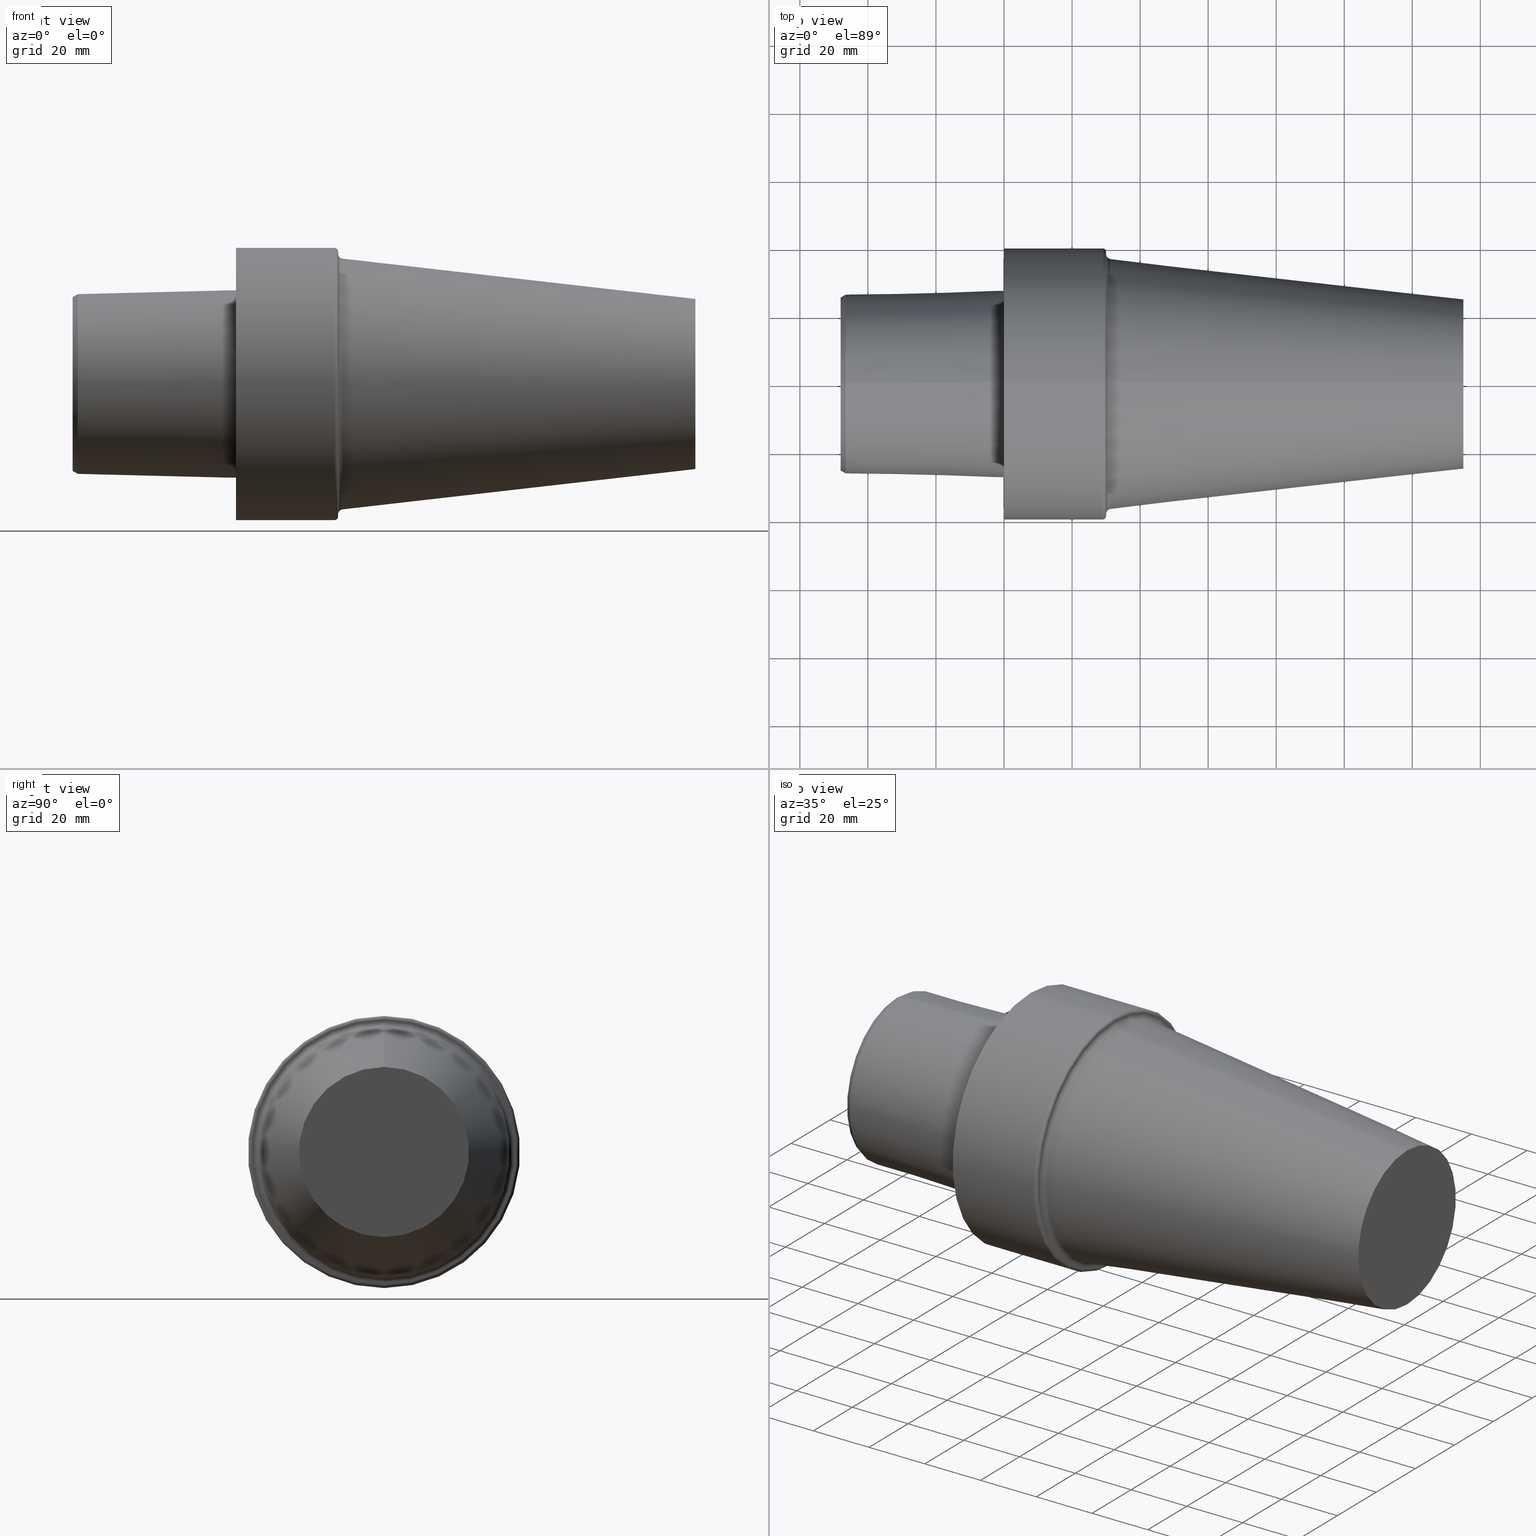
[diagram: canonical four-view strip — front | top / right | iso, engineering-drawing reading convention]
A machine part, canonical four-view strip (front | top / right | iso — engineering-drawing reading convention). The complete STEP part file that produces these views, byte-faithful:
ISO-10303-21;
HEADER;
FILE_DESCRIPTION (( 'STEP AP203' ),
    '1' );
FILE_NAME ('C8-S50-135.stp',
    '2022-03-11T15:37:04',
    ( '' ),
    ( '' ),
    'SwSTEP 2.0',
    'SolidWorks 2021',
    '' );
FILE_SCHEMA (( 'CONFIG_CONTROL_DESIGN' ));
ENDSEC;

DATA;
#1 = EDGE_LOOP ( 'NONE', ( #489, #426, #384, #85 ) ) ;
#2 = APPROVAL ( #527, 'UNSPECIFIED' ) ;
#3 = CARTESIAN_POINT ( 'NONE',  ( 29.99999996940000102, 0.000000000000000000, 38.33833553020095763 ) ) ;
#4 = ORIENTED_EDGE ( 'NONE', *, *, #473, .T. ) ;
#5 = LOCAL_TIME ( 9, 37, 4.000000000000000000, #172 ) ;
#6 = VECTOR ( 'NONE', #359, 1000.000000000000114 ) ;
#7 = ADVANCED_FACE ( 'NONE', ( #95 ), #18, .T. ) ;
#8 = ORIENTED_EDGE ( 'NONE', *, *, #144, .F. ) ;
#9 = CARTESIAN_POINT ( 'NONE',  ( -1.940694418020491918, 0.000000000000000000, 0.000000000000000000 ) ) ;
#10 = APPROVAL ( #420, 'UNSPECIFIED' ) ;
#11 = AXIS2_PLACEMENT_3D ( 'NONE', #84, #246, #418 ) ;
#12 = AXIS2_PLACEMENT_3D ( 'NONE', #472, #262, #434 ) ;
#13 = EDGE_CURVE ( 'NONE', #428, #467, #171, .T. ) ;
#14 = DIRECTION ( 'NONE',  ( 0.000000000000000000, 0.000000000000000000, -1.000000000000000000 ) ) ;
#15 = CARTESIAN_POINT ( 'NONE',  ( 0.000000000000000000, 0.000000000000000000, 27.52650806192296074 ) ) ;
#16 = CARTESIAN_POINT ( 'NONE',  ( -47.99999995373141815, 25.54657486860418558, 0.000000000000000000 ) ) ;
#17 = ORIENTED_EDGE ( 'NONE', *, *, #13, .T. ) ;
#18 = TOROIDAL_SURFACE ( 'NONE', #11, 38.99249996022764719, 0.9999999989799999156 ) ;
#19 = ORIENTED_EDGE ( 'NONE', *, *, #505, .F. ) ;
#20 = FACE_OUTER_BOUND ( 'NONE', #502, .T. ) ;
#21 = EDGE_CURVE ( 'NONE', #297, #247, #300, .T. ) ;
#22 = VERTEX_POINT ( 'NONE', #348 ) ;
#23 = AXIS2_PLACEMENT_3D ( 'NONE', #269, #485, #443 ) ;
#24 = CARTESIAN_POINT ( 'NONE',  ( 29.99999996940000102, 4.695091989169785401E-15, -38.33833553020095763 ) ) ;
#25 = DIRECTION ( 'NONE',  ( 0.000000000000000000, 0.000000000000000000, 1.000000000000000000 ) ) ;
#26 = DIRECTION ( 'NONE',  ( 0.000000000000000000, 1.000000000000000000, 1.224646799147351975E-16 ) ) ;
#27 = ORIENTED_EDGE ( 'NONE', *, *, #430, .F. ) ;
#28 = CARTESIAN_POINT ( 'NONE',  ( 29.99999996940000102, 0.000000000000000000, 0.000000000000000000 ) ) ;
#29 = ADVANCED_FACE ( 'NONE', ( #433 ), #184, .T. ) ;
#30 = AXIS2_PLACEMENT_3D ( 'NONE', #435, #148, #60 ) ;
#31 = FACE_OUTER_BOUND ( 'NONE', #299, .T. ) ;
#32 = CIRCLE ( 'NONE', #54, 24.99999997449999967 ) ;
#33 = APPROVAL_DATE_TIME ( #240, #100 ) ;
#34 = CC_DESIGN_DATE_AND_TIME_ASSIGNMENT ( #329, #375, ( #115 ) ) ;
#35 = DIRECTION ( 'NONE',  ( -1.000000000000000000, 0.000000000000000000, 0.000000000000000000 ) ) ;
#36 = EDGE_LOOP ( 'NONE', ( #8, #328, #313, #125 ) ) ;
#37 = APPROVAL_ROLE ( '' ) ;
#38 = FACE_OUTER_BOUND ( 'NONE', #117, .T. ) ;
#39 = DIRECTION ( 'NONE',  ( -1.000000000000000000, 0.000000000000000000, 0.000000000000000000 ) ) ;
#40 = CIRCLE ( 'NONE', #490, 38.33833553089489499 ) ;
#41 = EDGE_CURVE ( 'NONE', #423, #354, #523, .T. ) ;
#42 = CALENDAR_DATE ( 2022, 11, 3 ) ;
#43 = CARTESIAN_POINT ( 'NONE',  ( 29.99999996940000102, 4.836436366599519633E-15, -38.99249996022764719 ) ) ;
#44 = CARTESIAN_POINT ( 'NONE',  ( -46.49999995257000052, 0.000000000000000000, -26.41260027305914804 ) ) ;
#45 = ORIENTED_EDGE ( 'NONE', *, *, #365, .F. ) ;
#46 = CARTESIAN_POINT ( 'NONE',  ( -47.99999995373141815, 3.371024998973778328E-15, -27.52650806192296074 ) ) ;
#47 = ORIENTED_EDGE ( 'NONE', *, *, #279, .T. ) ;
#48 = CC_DESIGN_APPROVAL ( #100, ( #98 ) ) ;
#49 = ADVANCED_FACE ( 'NONE', ( #267 ), #220, .T. ) ;
#50 = DIRECTION ( 'NONE',  ( 0.000000000000000000, 0.000000000000000000, 1.000000000000000000 ) ) ;
#51 = ORIENTED_EDGE ( 'NONE', *, *, #290, .F. ) ;
#52 = CONICAL_SURFACE ( 'NONE', #427, 27.52650806192296074, 0.02499311489546479637 ) ;
#53 = ORIENTED_EDGE ( 'NONE', *, *, #430, .T. ) ;
#54 = AXIS2_PLACEMENT_3D ( 'NONE', #387, #241, #377 ) ;
#55 = DIRECTION ( 'NONE',  ( 0.8660254037844387076, 0.000000000000000000, -0.4999999999999998890 ) ) ;
#56 = ADVANCED_FACE ( 'NONE', ( #304 ), #385, .T. ) ;
#57 = CIRCLE ( 'NONE', #30, 25.54657486860418558 ) ;
#58 = AXIS2_PLACEMENT_3D ( 'NONE', #528, #320, #116 ) ;
#59 = ORGANIZATION ( 'UNSPECIFIED', 'UNSPECIFIED', '' ) ;
#60 = DIRECTION ( 'NONE',  ( 0.000000000000000000, 0.000000000000000000, 1.000000000000000000 ) ) ;
#61 = DIRECTION ( 'NONE',  ( -1.000000000000000000, 0.000000000000000000, 0.000000000000000000 ) ) ;
#62 = DIRECTION ( 'NONE',  ( 0.000000000000000000, 0.000000000000000000, 1.000000000000000000 ) ) ;
#63 = ORIENTED_EDGE ( 'NONE', *, *, #222, .F. ) ;
#64 = FACE_OUTER_BOUND ( 'NONE', #517, .T. ) ;
#65 = MANIFOLD_SOLID_BREP ( 'Scale1', #461 ) ;
#66 = ORIENTED_EDGE ( 'NONE', *, *, #130, .T. ) ;
#67 = CARTESIAN_POINT ( 'NONE',  ( 134.9999998623000010, 3.787099996474778961E-15, -24.99999997449999967 ) ) ;
#68 = EDGE_LOOP ( 'NONE', ( #415, #268 ) ) ;
#69 = LOCAL_TIME ( 9, 37, 4.000000000000000000, #370 ) ;
#70 = DIRECTION ( 'NONE',  ( 0.8660254037844387076, 6.123233995736768501E-17, 0.4999999999999998890 ) ) ;
#71 = LINE ( 'NONE', #516, #302 ) ;
#72 = CARTESIAN_POINT ( 'NONE',  ( 0.000000000000000000, 0.000000000000000000, 39.99249995920764889 ) ) ;
#73 = CC_DESIGN_PERSON_AND_ORGANIZATION_ASSIGNMENT ( #321, #206, ( #158 ) ) ;
#74 = PERSON_AND_ORGANIZATION ( #429, #59 ) ;
#75 = LINE ( 'NONE', #284, #213 ) ;
#76 = CIRCLE ( 'NONE', #386, 0.9999999989799973621 ) ;
#77 = CARTESIAN_POINT ( 'NONE',  ( 31.32968007804372235, 0.000000000000000000, 0.000000000000000000 ) ) ;
#78 = DATE_AND_TIME ( #133, #5 ) ;
#79 = DIRECTION ( 'NONE',  ( -1.000000000000000000, 0.000000000000000000, 0.000000000000000000 ) ) ;
#80 = EDGE_CURVE ( 'NONE', #467, #22, #306, .T. ) ;
#81 = EDGE_LOOP ( 'NONE', ( #4, #450, #534, #535 ) ) ;
#82 = DATE_AND_TIME ( #120, #69 ) ;
#83 = DIRECTION ( 'NONE',  ( 0.000000000000000000, 1.000000000000000000, 0.000000000000000000 ) ) ;
#84 = CARTESIAN_POINT ( 'NONE',  ( 28.99999997041999933, 0.000000000000000000, 0.000000000000000000 ) ) ;
#85 = ORIENTED_EDGE ( 'NONE', *, *, #13, .F. ) ;
#86 = SHAPE_DEFINITION_REPRESENTATION ( #217, #91 ) ;
#87 = CARTESIAN_POINT ( 'NONE',  ( 31.49999996787000001, 0.000000000000000000, 0.000000000000000000 ) ) ;
#88 = TOROIDAL_SURFACE ( 'NONE', #379, 38.99249996022764719, 0.9999999989799999156 ) ;
#89 = ORIENTED_EDGE ( 'NONE', *, *, #298, .T. ) ;
#90 = EDGE_CURVE ( 'NONE', #264, #423, #40, .T. ) ;
#91 = ADVANCED_BREP_SHAPE_REPRESENTATION ( 'C8-S50-135', ( #65, #23 ), #193 ) ;
#92 = CARTESIAN_POINT ( 'NONE',  ( 31.32968007804372235, 0.000000000000000000, 0.000000000000000000 ) ) ;
#93 = ORIENTED_EDGE ( 'NONE', *, *, #445, .T. ) ;
#94 = DIRECTION ( 'NONE',  ( 0.000000000000000000, 0.000000000000000000, 1.000000000000000000 ) ) ;
#95 = FACE_OUTER_BOUND ( 'NONE', #255, .T. ) ;
#96 = AXIS2_PLACEMENT_3D ( 'NONE', #349, #511, #143 ) ;
#97 = AXIS2_PLACEMENT_3D ( 'NONE', #245, #380, #501 ) ;
#98 = PRODUCT_DEFINITION_FORMATION_WITH_SPECIFIED_SOURCE ( 'ANY', '', #391, .NOT_KNOWN. ) ;
#99 = EDGE_CURVE ( 'NONE', #257, #428, #57, .T. ) ;
#100 = APPROVAL ( #244, 'UNSPECIFIED' ) ;
#101 = ORIENTED_EDGE ( 'NONE', *, *, #353, .F. ) ;
#102 = CIRCLE ( 'NONE', #512, 26.41260027305914804 ) ;
#103 = AXIS2_PLACEMENT_3D ( 'NONE', #293, #462, #165 ) ;
#104 = DIRECTION ( 'NONE',  ( 0.000000000000000000, 0.000000000000000000, 1.000000000000000000 ) ) ;
#105 = ADVANCED_FACE ( 'NONE', ( #399 ), #106, .F. ) ;
#106 = PLANE ( 'NONE',  #346 ) ;
#107 = ORIENTED_EDGE ( 'NONE', *, *, #271, .T. ) ;
#108 = DIRECTION ( 'NONE',  ( 0.000000000000000000, 0.000000000000000000, 1.000000000000000000 ) ) ;
#109 = CARTESIAN_POINT ( 'NONE',  ( -1.940694418020491918, 0.000000000000000000, 27.52650806192296074 ) ) ;
#110 = VECTOR ( 'NONE', #70, 1000.000000000000000 ) ;
#111 = CARTESIAN_POINT ( 'NONE',  ( -47.99999995373141815, 0.000000000000000000, 0.000000000000000000 ) ) ;
#112 = AXIS2_PLACEMENT_3D ( 'NONE', #234, #309, #25 ) ;
#113 = EDGE_CURVE ( 'NONE', #373, #526, #175, .T. ) ;
#114 = APPROVAL_ROLE ( '' ) ;
#115 = SECURITY_CLASSIFICATION ( '', '', #367 ) ;
#116 = DIRECTION ( 'NONE',  ( 0.000000000000000000, 0.000000000000000000, 1.000000000000000000 ) ) ;
#117 = EDGE_LOOP ( 'NONE', ( #45, #287 ) ) ;
#118 = CARTESIAN_POINT ( 'NONE',  ( 31.49999996787000001, 0.000000000000000000, 0.000000000000000000 ) ) ;
#119 = AXIS2_PLACEMENT_3D ( 'NONE', #191, #322, #62 ) ;
#120 = CALENDAR_DATE ( 2022, 11, 3 ) ;
#121 = EDGE_CURVE ( 'NONE', #504, #22, #431, .T. ) ;
#122 = AXIS2_PLACEMENT_3D ( 'NONE', #229, #360, #150 ) ;
#123 = CARTESIAN_POINT ( 'NONE',  ( 31.32968007804372235, 0.000000000000000000, 36.84803652241500060 ) ) ;
#124 = ORIENTED_EDGE ( 'NONE', *, *, #445, .F. ) ;
#125 = ORIENTED_EDGE ( 'NONE', *, *, #80, .F. ) ;
#126 = PERSON_AND_ORGANIZATION ( #429, #59 ) ;
#127 = DIRECTION ( 'NONE',  ( 0.000000000000000000, 0.000000000000000000, 1.000000000000000000 ) ) ;
#128 = ORIENTED_EDGE ( 'NONE', *, *, #464, .T. ) ;
#129 = DIRECTION ( 'NONE',  ( -1.000000000000000000, 0.000000000000000000, 0.000000000000000000 ) ) ;
#130 = EDGE_CURVE ( 'NONE', #264, #404, #499, .T. ) ;
#131 = ORIENTED_EDGE ( 'NONE', *, *, #538, .T. ) ;
#132 = CIRCLE ( 'NONE', #283, 36.84803652241500060 ) ;
#133 = CALENDAR_DATE ( 2022, 11, 3 ) ;
#134 = PLANE ( 'NONE',  #308 ) ;
#135 = CC_DESIGN_PERSON_AND_ORGANIZATION_ASSIGNMENT ( #160, #236, ( #115 ) ) ;
#136 = DIRECTION ( 'NONE',  ( 0.000000000000000000, 0.000000000000000000, 1.000000000000000000 ) ) ;
#137 = ORIENTED_EDGE ( 'NONE', *, *, #271, .F. ) ;
#138 = APPROVAL_PERSON_ORGANIZATION ( #74, #10, #37 ) ;
#139 = VECTOR ( 'NONE', #390, 1000.000000000000114 ) ;
#140 = EDGE_CURVE ( 'NONE', #257, #537, #368, .T. ) ;
#141 = FACE_OUTER_BOUND ( 'NONE', #479, .T. ) ;
#142 = CIRCLE ( 'NONE', #216, 38.33833553089489499 ) ;
#143 = DIRECTION ( 'NONE',  ( 0.000000000000000000, 0.000000000000000000, 1.000000000000000000 ) ) ;
#144 = EDGE_CURVE ( 'NONE', #537, #467, #102, .T. ) ;
#145 = AXIS2_PLACEMENT_3D ( 'NONE', #314, #278, #488 ) ;
#146 = DIRECTION ( 'NONE',  ( 0.000000000000000000, 0.000000000000000000, 1.000000000000000000 ) ) ;
#147 = CIRCLE ( 'NONE', #491, 39.99249995920764889 ) ;
#148 = DIRECTION ( 'NONE',  ( -1.000000000000000000, 0.000000000000000000, 0.000000000000000000 ) ) ;
#149 = EDGE_LOOP ( 'NONE', ( #93, #252 ) ) ;
#150 = DIRECTION ( 'NONE',  ( 0.000000000000000000, 0.000000000000000000, 1.000000000000000000 ) ) ;
#151 = ORIENTED_EDGE ( 'NONE', *, *, #290, .T. ) ;
#152 = DIRECTION ( 'NONE',  ( 0.000000000000000000, 0.000000000000000000, -1.000000000000000000 ) ) ;
#153 = DIRECTION ( 'NONE',  ( 0.000000000000000000, 0.000000000000000000, 1.000000000000000000 ) ) ;
#154 = DESIGN_CONTEXT ( 'detailed design', #162, 'design' ) ;
#155 = ORIENTED_EDGE ( 'NONE', *, *, #498, .F. ) ;
#156 = ADVANCED_FACE ( 'NONE', ( #444 ), #480, .T. ) ;
#157 = CARTESIAN_POINT ( 'NONE',  ( -1.940694418020491918, 0.000000000000000000, 0.000000000000000000 ) ) ;
#158 = PRODUCT_DEFINITION ( 'UNKNOWN', '', #98, #154 ) ;
#159 = DIRECTION ( 'NONE',  ( 0.000000000000000000, 0.000000000000000000, 1.000000000000000000 ) ) ;
#160 = PERSON_AND_ORGANIZATION ( #429, #59 ) ;
#161 = DIRECTION ( 'NONE',  ( 1.000000000000000000, 0.000000000000000000, 0.000000000000000000 ) ) ;
#162 = APPLICATION_CONTEXT ( 'configuration controlled 3d designs of mechanical parts and assemblies' ) ;
#163 = ORIENTED_EDGE ( 'NONE', *, *, #509, .F. ) ;
#164 = PERSON_AND_ORGANIZATION ( #429, #59 ) ;
#165 = DIRECTION ( 'NONE',  ( 0.000000000000000000, 0.000000000000000000, -1.000000000000000000 ) ) ;
#166 = CONICAL_SURFACE ( 'NONE', #103, 27.52650806192296074, 0.02499311489546479637 ) ;
#167 = ORIENTED_EDGE ( 'NONE', *, *, #303, .T. ) ;
#168 = VERTEX_POINT ( 'NONE', #67 ) ;
#169 = CONICAL_SURFACE ( 'NONE', #122, 24.99999997449999967, 0.1137920071545894807 ) ;
#170 = CARTESIAN_POINT ( 'NONE',  ( -47.99999995373141815, 0.000000000000000000, -25.54657486860418558 ) ) ;
#171 = LINE ( 'NONE', #44, #292 ) ;
#172 = COORDINATED_UNIVERSAL_TIME_OFFSET ( 6, 0, .BEHIND. ) ;
#173 = FACE_OUTER_BOUND ( 'NONE', #36, .T. ) ;
#174 = ORIENTED_EDGE ( 'NONE', *, *, #41, .F. ) ;
#175 = CIRCLE ( 'NONE', #362, 38.99249996022764719 ) ;
#176 = ORIENTED_EDGE ( 'NONE', *, *, #21, .F. ) ;
#177 = AXIS2_PLACEMENT_3D ( 'NONE', #316, #200, #483 ) ;
#178 = PLANE ( 'NONE',  #513 ) ;
#179 = ORIENTED_EDGE ( 'NONE', *, *, #331, .T. ) ;
#180 = LINE ( 'NONE', #344, #311 ) ;
#181 = CARTESIAN_POINT ( 'NONE',  ( -1.940694418020491918, 0.000000000000000000, -27.52650806192296074 ) ) ;
#182 = EDGE_CURVE ( 'NONE', #526, #440, #376, .T. ) ;
#183 = DIRECTION ( 'NONE',  ( -1.000000000000000000, 0.000000000000000000, 0.000000000000000000 ) ) ;
#184 = CONICAL_SURFACE ( 'NONE', #525, 26.41260027305914804, 0.5235987755982987046 ) ;
#185 = ADVANCED_FACE ( 'NONE', ( #31 ), #474, .F. ) ;
#186 = DIRECTION ( 'NONE',  ( 0.000000000000000000, 0.000000000000000000, 1.000000000000000000 ) ) ;
#187 = CARTESIAN_POINT ( 'NONE',  ( 28.99999997041999933, 0.000000000000000000, 0.000000000000000000 ) ) ;
#188 = DIRECTION ( 'NONE',  ( 1.000000000000000000, 0.000000000000000000, 0.000000000000000000 ) ) ;
#189 = CIRCLE ( 'NONE', #409, 26.41260027305914804 ) ;
#190 = ORIENTED_EDGE ( 'NONE', *, *, #412, .F. ) ;
#191 = CARTESIAN_POINT ( 'NONE',  ( 29.99999996940000102, 0.000000000000000000, 0.000000000000000000 ) ) ;
#192 = ORIENTED_EDGE ( 'NONE', *, *, #21, .T. ) ;
#193 =( GEOMETRIC_REPRESENTATION_CONTEXT ( 3 ) GLOBAL_UNCERTAINTY_ASSIGNED_CONTEXT ( ( #397 ) ) GLOBAL_UNIT_ASSIGNED_CONTEXT ( ( #405, #315, #448 ) ) REPRESENTATION_CONTEXT ( 'NONE', 'WORKASPACE' ) );
#194 = CARTESIAN_POINT ( 'NONE',  ( -46.49999995257000052, 3.302817818564909263E-15, 26.41260027305914804 ) ) ;
#195 = CARTESIAN_POINT ( 'NONE',  ( 134.9999998623000010, 0.000000000000000000, 24.99999997449999967 ) ) ;
#196 = EDGE_CURVE ( 'NONE', #440, #247, #75, .T. ) ;
#197 = CARTESIAN_POINT ( 'NONE',  ( -46.49999995257000052, 3.234610638156039409E-15, 26.41260027305914804 ) ) ;
#198 = APPLICATION_PROTOCOL_DEFINITION ( 'international standard', 'config_control_design', 1994, #162 ) ;
#199 = CIRCLE ( 'NONE', #238, 24.99999997449999967 ) ;
#200 = DIRECTION ( 'NONE',  ( -1.000000000000000000, 0.000000000000000000, 0.000000000000000000 ) ) ;
#201 = FACE_OUTER_BOUND ( 'NONE', #1, .T. ) ;
#202 = ORIENTED_EDGE ( 'NONE', *, *, #303, .F. ) ;
#203 = PLANE ( 'NONE',  #277 ) ;
#204 = DIRECTION ( 'NONE',  ( -1.000000000000000000, 0.000000000000000000, 0.000000000000000000 ) ) ;
#205 = ORIENTED_EDGE ( 'NONE', *, *, #365, .T. ) ;
#206 = PERSON_AND_ORGANIZATION_ROLE ( 'creator' ) ;
#207 = CARTESIAN_POINT ( 'NONE',  ( 29.99999996940000102, 38.33833553089489499, 0.000000000000000000 ) ) ;
#208 = ORIENTED_EDGE ( 'NONE', *, *, #421, .T. ) ;
#209 = ADVANCED_FACE ( 'NONE', ( #201 ), #352, .T. ) ;
#210 = CARTESIAN_POINT ( 'NONE',  ( 28.99999997041999933, 4.897668706494425201E-15, -39.99249995920764889 ) ) ;
#211 = ORIENTED_EDGE ( 'NONE', *, *, #473, .F. ) ;
#212 = CARTESIAN_POINT ( 'NONE',  ( 0.000000000000000000, 39.99249995920764889, 0.000000000000000000 ) ) ;
#213 = VECTOR ( 'NONE', #447, 1000.000000000000000 ) ;
#214 = VERTEX_POINT ( 'NONE', #521 ) ;
#215 = VECTOR ( 'NONE', #296, 1000.000000000000000 ) ;
#216 = AXIS2_PLACEMENT_3D ( 'NONE', #28, #481, #446 ) ;
#217 = PRODUCT_DEFINITION_SHAPE ( 'NONE', 'NONE',  #158 ) ;
#218 = ADVANCED_FACE ( 'NONE', ( #20 ), #52, .T. ) ;
#219 = DIRECTION ( 'NONE',  ( 0.000000000000000000, -1.000000000000000000, 0.000000000000000000 ) ) ;
#220 = CYLINDRICAL_SURFACE ( 'NONE', #442, 27.52650806192296074 ) ;
#221 = DIRECTION ( 'NONE',  ( 0.000000000000000000, 0.000000000000000000, -1.000000000000000000 ) ) ;
#222 = EDGE_CURVE ( 'NONE', #526, #373, #468, .T. ) ;
#223 = DIRECTION ( 'NONE',  ( 1.000000000000000000, 0.000000000000000000, 0.000000000000000000 ) ) ;
#224 = CARTESIAN_POINT ( 'NONE',  ( 29.99999996940000102, 0.000000000000000000, 38.99249996022764719 ) ) ;
#225 = CC_DESIGN_PERSON_AND_ORGANIZATION_ASSIGNMENT ( #126, #458, ( #98 ) ) ;
#226 = DIRECTION ( 'NONE',  ( 0.000000000000000000, 0.000000000000000000, 1.000000000000000000 ) ) ;
#227 = FACE_OUTER_BOUND ( 'NONE', #81, .T. ) ;
#228 = EDGE_LOOP ( 'NONE', ( #190, #89, #208, #531 ) ) ;
#229 = CARTESIAN_POINT ( 'NONE',  ( 134.9999998623000010, 0.000000000000000000, 0.000000000000000000 ) ) ;
#230 = VECTOR ( 'NONE', #79, 1000.000000000000000 ) ;
#231 = ORIENTED_EDGE ( 'NONE', *, *, #140, .F. ) ;
#232 = PERSON_AND_ORGANIZATION ( #429, #59 ) ;
#233 = DIRECTION ( 'NONE',  ( -1.000000000000000000, 0.000000000000000000, 0.000000000000000000 ) ) ;
#234 = CARTESIAN_POINT ( 'NONE',  ( 28.99999997041999933, 0.000000000000000000, 0.000000000000000000 ) ) ;
#235 = CARTESIAN_POINT ( 'NONE',  ( 0.000000000000000000, 0.000000000000000000, 0.000000000000000000 ) ) ;
#236 = PERSON_AND_ORGANIZATION_ROLE ( 'classification_officer' ) ;
#237 = AXIS2_PLACEMENT_3D ( 'NONE', #111, #35, #441 ) ;
#238 = AXIS2_PLACEMENT_3D ( 'NONE', #539, #417, #136 ) ;
#239 = CARTESIAN_POINT ( 'NONE',  ( -46.49999995257000052, 0.000000000000000000, 0.000000000000000000 ) ) ;
#240 = DATE_AND_TIME ( #42, #280 ) ;
#241 = DIRECTION ( 'NONE',  ( -1.000000000000000000, 0.000000000000000000, 0.000000000000000000 ) ) ;
#242 = CARTESIAN_POINT ( 'NONE',  ( 28.99999997041999933, 0.000000000000000000, 39.99249995920764889 ) ) ;
#243 = ORIENTED_EDGE ( 'NONE', *, *, #182, .F. ) ;
#244 = APPROVAL_STATUS ( 'not_yet_approved' ) ;
#245 = CARTESIAN_POINT ( 'NONE',  ( -47.99999995373141815, 0.000000000000000000, 0.000000000000000000 ) ) ;
#246 = DIRECTION ( 'NONE',  ( -1.000000000000000000, 0.000000000000000000, 0.000000000000000000 ) ) ;
#247 = VERTEX_POINT ( 'NONE', #72 ) ;
#248 = ADVANCED_FACE ( 'NONE', ( #227 ), #402, .T. ) ;
#249 = APPROVAL_DATE_TIME ( #82, #2 ) ;
#250 = CIRCLE ( 'NONE', #12, 27.52650806192296074 ) ;
#251 = CARTESIAN_POINT ( 'NONE',  ( 28.99999997041999933, 4.775204026704606177E-15, -38.99249996022764719 ) ) ;
#252 = ORIENTED_EDGE ( 'NONE', *, *, #99, .T. ) ;
#253 = APPLICATION_CONTEXT ( 'configuration controlled 3d designs of mechanical parts and assemblies' ) ;
#254 = DIRECTION ( 'NONE',  ( 0.000000000000000000, 0.000000000000000000, 1.000000000000000000 ) ) ;
#255 = EDGE_LOOP ( 'NONE', ( #438, #460, #19, #243 ) ) ;
#256 = AXIS2_PLACEMENT_3D ( 'NONE', #9, #301, #347 ) ;
#257 = VERTEX_POINT ( 'NONE', #406 ) ;
#258 = CIRCLE ( 'NONE', #58, 39.99249995920764889 ) ;
#259 = APPROVAL_PERSON_ORGANIZATION ( #364, #2, #114 ) ;
#260 = CARTESIAN_POINT ( 'NONE',  ( 31.49999996787000001, 0.000000000000000000, 38.33833552950702028 ) ) ;
#261 = DIRECTION ( 'NONE',  ( -1.000000000000000000, 0.000000000000000000, 0.000000000000000000 ) ) ;
#262 = DIRECTION ( 'NONE',  ( -1.000000000000000000, 0.000000000000000000, 0.000000000000000000 ) ) ;
#263 = AXIS2_PLACEMENT_3D ( 'NONE', #289, #39, #414 ) ;
#264 = VERTEX_POINT ( 'NONE', #24 ) ;
#265 = DIRECTION ( 'NONE',  ( -1.000000000000000000, 0.000000000000000000, 0.000000000000000000 ) ) ;
#266 = DIRECTION ( 'NONE',  ( -0.9935326726551686471, 1.390544694323235530E-17, -0.1135465911715431570 ) ) ;
#267 = FACE_OUTER_BOUND ( 'NONE', #228, .T. ) ;
#268 = ORIENTED_EDGE ( 'NONE', *, *, #90, .T. ) ;
#269 = CARTESIAN_POINT ( 'NONE',  ( 0.000000000000000000, 0.000000000000000000, 0.000000000000000000 ) ) ;
#270 = ORIENTED_EDGE ( 'NONE', *, *, #113, .F. ) ;
#271 = EDGE_CURVE ( 'NONE', #467, #537, #189, .T. ) ;
#272 = DIRECTION ( 'NONE',  ( 0.000000000000000000, -1.224646799147350249E-16, 1.000000000000000000 ) ) ;
#273 = CC_DESIGN_APPROVAL ( #10, ( #115 ) ) ;
#274 = AXIS2_PLACEMENT_3D ( 'NONE', #437, #261, #186 ) ;
#275 = PRODUCT_RELATED_PRODUCT_CATEGORY ( 'detail', '', ( #391 ) ) ;
#276 = CARTESIAN_POINT ( 'NONE',  ( -46.49999995257000052, 0.000000000000000000, 0.000000000000000000 ) ) ;
#277 = AXIS2_PLACEMENT_3D ( 'NONE', #372, #265, #393 ) ;
#278 = DIRECTION ( 'NONE',  ( 0.000000000000000000, -1.000000000000000000, 0.000000000000000000 ) ) ;
#279 = EDGE_CURVE ( 'NONE', #247, #297, #147, .T. ) ;
#280 = LOCAL_TIME ( 9, 37, 4.000000000000000000, #324 ) ;
#281 = FACE_BOUND ( 'NONE', #68, .T. ) ;
#282 = ORIENTED_EDGE ( 'NONE', *, *, #196, .F. ) ;
#283 = AXIS2_PLACEMENT_3D ( 'NONE', #77, #204, #50 ) ;
#284 = CARTESIAN_POINT ( 'NONE',  ( -47.99999995373141815, 0.000000000000000000, 39.99249995920764889 ) ) ;
#285 = FACE_OUTER_BOUND ( 'NONE', #369, .T. ) ;
#286 = ORIENTED_EDGE ( 'NONE', *, *, #279, .F. ) ;
#287 = ORIENTED_EDGE ( 'NONE', *, *, #464, .F. ) ;
#288 = DATE_TIME_ROLE ( 'creation_date' ) ;
#289 = CARTESIAN_POINT ( 'NONE',  ( -47.99999995373141815, 0.000000000000000000, 0.000000000000000000 ) ) ;
#290 = EDGE_CURVE ( 'NONE', #214, #354, #361, .T. ) ;
#291 = ORIENTED_EDGE ( 'NONE', *, *, #41, .T. ) ;
#292 = VECTOR ( 'NONE', #55, 1000.000000000000000 ) ;
#293 = CARTESIAN_POINT ( 'NONE',  ( -1.940694418020491918, 0.000000000000000000, 0.000000000000000000 ) ) ;
#294 = VERTEX_POINT ( 'NONE', #408 ) ;
#295 = APPROVAL_ROLE ( '' ) ;
#296 = DIRECTION ( 'NONE',  ( -1.000000000000000000, 0.000000000000000000, 0.000000000000000000 ) ) ;
#297 = VERTEX_POINT ( 'NONE', #484 ) ;
#298 = EDGE_CURVE ( 'NONE', #294, #496, #452, .T. ) ;
#299 = EDGE_LOOP ( 'NONE', ( #478, #163, #291, #179 ) ) ;
#300 = CIRCLE ( 'NONE', #274, 39.99249995920764889 ) ;
#301 = DIRECTION ( 'NONE',  ( -1.000000000000000000, 0.000000000000000000, 0.000000000000000000 ) ) ;
#302 = VECTOR ( 'NONE', #520, 1000.000000000000114 ) ;
#303 = EDGE_CURVE ( 'NONE', #419, #440, #258, .T. ) ;
#304 = FACE_OUTER_BOUND ( 'NONE', #335, .T. ) ;
#305 = ORIENTED_EDGE ( 'NONE', *, *, #113, .T. ) ;
#306 = LINE ( 'NONE', #181, #139 ) ;
#307 = CC_DESIGN_PERSON_AND_ORGANIZATION_ASSIGNMENT ( #232, #319, ( #391 ) ) ;
#308 = AXIS2_PLACEMENT_3D ( 'NONE', #212, #533, #83 ) ;
#309 = DIRECTION ( 'NONE',  ( -1.000000000000000000, 0.000000000000000000, 0.000000000000000000 ) ) ;
#310 = CARTESIAN_POINT ( 'NONE',  ( 29.99999996940000102, 0.000000000000000000, 0.000000000000000000 ) ) ;
#311 = VECTOR ( 'NONE', #266, 1000.000000000000114 ) ;
#312 = ADVANCED_FACE ( 'NONE', ( #281, #339 ), #178, .F. ) ;
#313 = ORIENTED_EDGE ( 'NONE', *, *, #121, .T. ) ;
#314 = CARTESIAN_POINT ( 'NONE',  ( 28.99999997041999933, 0.000000000000000000, 38.99249996022764719 ) ) ;
#315 =( NAMED_UNIT ( * ) PLANE_ANGLE_UNIT ( ) SI_UNIT ( $, .RADIAN. ) );
#316 = CARTESIAN_POINT ( 'NONE',  ( 0.000000000000000000, 0.000000000000000000, 0.000000000000000000 ) ) ;
#317 = AXIS2_PLACEMENT_3D ( 'NONE', #260, #219, #221 ) ;
#318 = DIRECTION ( 'NONE',  ( -1.000000000000000000, 0.000000000000000000, 0.000000000000000000 ) ) ;
#319 = PERSON_AND_ORGANIZATION_ROLE ( 'design_owner' ) ;
#320 = DIRECTION ( 'NONE',  ( -1.000000000000000000, 0.000000000000000000, 0.000000000000000000 ) ) ;
#321 = PERSON_AND_ORGANIZATION ( #429, #59 ) ;
#322 = DIRECTION ( 'NONE',  ( -1.000000000000000000, 0.000000000000000000, 0.000000000000000000 ) ) ;
#323 = ORIENTED_EDGE ( 'NONE', *, *, #90, .F. ) ;
#324 = COORDINATED_UNIVERSAL_TIME_OFFSET ( 6, 0, .BEHIND. ) ;
#325 = VECTOR ( 'NONE', #334, 1000.000000000000000 ) ;
#326 = DIRECTION ( 'NONE',  ( 0.000000000000000000, -1.224646799147358384E-16, 1.000000000000000000 ) ) ;
#327 = ORIENTED_EDGE ( 'NONE', *, *, #331, .F. ) ;
#328 = ORIENTED_EDGE ( 'NONE', *, *, #519, .T. ) ;
#329 = DATE_AND_TIME ( #413, #424 ) ;
#330 = CC_DESIGN_APPROVAL ( #2, ( #158 ) ) ;
#331 = EDGE_CURVE ( 'NONE', #354, #404, #475, .T. ) ;
#332 = DIRECTION ( 'NONE',  ( 0.000000000000000000, 0.000000000000000000, 1.000000000000000000 ) ) ;
#333 = ORIENTED_EDGE ( 'NONE', *, *, #519, .F. ) ;
#334 = DIRECTION ( 'NONE',  ( -1.000000000000000000, 0.000000000000000000, 0.000000000000000000 ) ) ;
#335 = EDGE_LOOP ( 'NONE', ( #205, #358, #327, #51 ) ) ;
#336 = COORDINATED_UNIVERSAL_TIME_OFFSET ( 6, 0, .BEHIND. ) ;
#337 = AXIS2_PLACEMENT_3D ( 'NONE', #507, #26, #272 ) ;
#338 = AXIS2_PLACEMENT_3D ( 'NONE', #87, #456, #254 ) ;
#339 = FACE_OUTER_BOUND ( 'NONE', #463, .T. ) ;
#340 = ADVANCED_FACE ( 'NONE', ( #342 ), #503, .T. ) ;
#341 = EDGE_LOOP ( 'NONE', ( #515, #493, #286, #282 ) ) ;
#342 = FACE_OUTER_BOUND ( 'NONE', #388, .T. ) ;
#343 = ORIENTED_EDGE ( 'NONE', *, *, #80, .T. ) ;
#344 = CARTESIAN_POINT ( 'NONE',  ( 134.9999998623000010, 3.061616994745535943E-15, -24.99999997449999967 ) ) ;
#345 = CARTESIAN_POINT ( 'NONE',  ( -46.49999995257000052, 0.000000000000000000, 0.000000000000000000 ) ) ;
#346 = AXIS2_PLACEMENT_3D ( 'NONE', #16, #188, #351 ) ;
#347 = DIRECTION ( 'NONE',  ( 0.000000000000000000, 0.000000000000000000, 1.000000000000000000 ) ) ;
#348 = CARTESIAN_POINT ( 'NONE',  ( -1.940694418020491918, 3.371024998973778328E-15, -27.52650806192296074 ) ) ;
#349 = CARTESIAN_POINT ( 'NONE',  ( 134.9999998623000010, 0.000000000000000000, 0.000000000000000000 ) ) ;
#350 = DIRECTION ( 'NONE',  ( -1.000000000000000000, 0.000000000000000000, 0.000000000000000000 ) ) ;
#351 = DIRECTION ( 'NONE',  ( 0.000000000000000000, 1.000000000000000000, 0.000000000000000000 ) ) ;
#352 = CONICAL_SURFACE ( 'NONE', #403, 26.41260027305914804, 0.5235987755982987046 ) ;
#353 = EDGE_CURVE ( 'NONE', #419, #297, #497, .T. ) ;
#354 = VERTEX_POINT ( 'NONE', #123 ) ;
#355 = EDGE_LOOP ( 'NONE', ( #323, #66, #53, #174 ) ) ;
#356 = CARTESIAN_POINT ( 'NONE',  ( -47.99999995373141815, 0.000000000000000000, 0.000000000000000000 ) ) ;
#357 = AXIS2_PLACEMENT_3D ( 'NONE', #436, #61, #146 ) ;
#358 = ORIENTED_EDGE ( 'NONE', *, *, #498, .T. ) ;
#359 = DIRECTION ( 'NONE',  ( -0.9935326726551686471, 0.000000000000000000, 0.1135465911715431570 ) ) ;
#360 = DIRECTION ( 'NONE',  ( -1.000000000000000000, 0.000000000000000000, 0.000000000000000000 ) ) ;
#361 = LINE ( 'NONE', #195, #6 ) ;
#362 = AXIS2_PLACEMENT_3D ( 'NONE', #310, #477, #389 ) ;
#363 = TOROIDAL_SURFACE ( 'NONE', #338, 38.33833552950702028, 1.499999998469999873 ) ;
#364 = PERSON_AND_ORGANIZATION ( #429, #59 ) ;
#365 = EDGE_CURVE ( 'NONE', #214, #168, #199, .T. ) ;
#366 = DIRECTION ( 'NONE',  ( 0.000000000000000000, 0.000000000000000000, -1.000000000000000000 ) ) ;
#367 = SECURITY_CLASSIFICATION_LEVEL ( 'unclassified' ) ;
#368 = LINE ( 'NONE', #197, #110 ) ;
#369 = EDGE_LOOP ( 'NONE', ( #47, #192 ) ) ;
#370 = COORDINATED_UNIVERSAL_TIME_OFFSET ( 6, 0, .BEHIND. ) ;
#371 = APPROVAL_PERSON_ORGANIZATION ( #164, #100, #295 ) ;
#372 = CARTESIAN_POINT ( 'NONE',  ( 134.9999998623000010, 0.000000000000000000, 0.000000000000000000 ) ) ;
#373 = VERTEX_POINT ( 'NONE', #43 ) ;
#374 = ADVANCED_FACE ( 'NONE', ( #173 ), #166, .T. ) ;
#375 = DATE_TIME_ROLE ( 'classification_date' ) ;
#376 = CIRCLE ( 'NONE', #145, 0.9999999989799973621 ) ;
#377 = DIRECTION ( 'NONE',  ( 0.000000000000000000, 0.000000000000000000, 1.000000000000000000 ) ) ;
#378 = ORIENTED_EDGE ( 'NONE', *, *, #398, .F. ) ;
#379 = AXIS2_PLACEMENT_3D ( 'NONE', #187, #350, #94 ) ;
#380 = DIRECTION ( 'NONE',  ( -1.000000000000000000, 0.000000000000000000, 0.000000000000000000 ) ) ;
#381 = EDGE_LOOP ( 'NONE', ( #211, #395 ) ) ;
#382 = ADVANCED_FACE ( 'NONE', ( #454, #285 ), #134, .F. ) ;
#383 = LINE ( 'NONE', #492, #230 ) ;
#384 = ORIENTED_EDGE ( 'NONE', *, *, #144, .T. ) ;
#385 = CONICAL_SURFACE ( 'NONE', #96, 24.99999997449999967, 0.1137920071545894807 ) ;
#386 = AXIS2_PLACEMENT_3D ( 'NONE', #251, #465, #326 ) ;
#387 = CARTESIAN_POINT ( 'NONE',  ( 134.9999998623000010, 0.000000000000000000, 0.000000000000000000 ) ) ;
#388 = EDGE_LOOP ( 'NONE', ( #101, #167, #400, #176 ) ) ;
#389 = DIRECTION ( 'NONE',  ( 0.000000000000000000, 0.000000000000000000, 1.000000000000000000 ) ) ;
#390 = DIRECTION ( 'NONE',  ( 0.9996876883616916398, 0.000000000000000000, -0.02499051296106804404 ) ) ;
#391 = PRODUCT ( 'C8-S50-135', 'C8-S50-135', '', ( #522 ) ) ;
#392 = ADVANCED_FACE ( 'NONE', ( #495 ), #363, .F. ) ;
#393 = DIRECTION ( 'NONE',  ( 0.000000000000000000, 0.000000000000000000, 1.000000000000000000 ) ) ;
#394 = CC_DESIGN_SECURITY_CLASSIFICATION ( #115, ( #98 ) ) ;
#395 = ORIENTED_EDGE ( 'NONE', *, *, #298, .F. ) ;
#396 = CIRCLE ( 'NONE', #357, 27.52650806192296074 ) ;
#397 = UNCERTAINTY_MEASURE_WITH_UNIT (LENGTH_MEASURE( 1.000000000000000082E-05 ), #405, 'distance_accuracy_value', 'NONE');
#398 = EDGE_CURVE ( 'NONE', #373, #419, #76, .T. ) ;
#399 = FACE_OUTER_BOUND ( 'NONE', #149, .T. ) ;
#400 = ORIENTED_EDGE ( 'NONE', *, *, #196, .T. ) ;
#401 = CC_DESIGN_PERSON_AND_ORGANIZATION_ASSIGNMENT ( #453, #416, ( #98 ) ) ;
#402 = CYLINDRICAL_SURFACE ( 'NONE', #470, 27.52650806192296074 ) ;
#403 = AXIS2_PLACEMENT_3D ( 'NONE', #530, #449, #366 ) ;
#404 = VERTEX_POINT ( 'NONE', #422 ) ;
#405 =( LENGTH_UNIT ( ) NAMED_UNIT ( * ) SI_UNIT ( .MILLI., .METRE. ) );
#406 = CARTESIAN_POINT ( 'NONE',  ( -47.99999995373141815, 3.181581876178735270E-15, 25.54657486860418558 ) ) ;
#407 = DIRECTION ( 'NONE',  ( -1.000000000000000000, 0.000000000000000000, 0.000000000000000000 ) ) ;
#408 = CARTESIAN_POINT ( 'NONE',  ( 0.000000000000000000, 3.371024998973778328E-15, -27.52650806192296074 ) ) ;
#409 = AXIS2_PLACEMENT_3D ( 'NONE', #276, #486, #159 ) ;
#410 = DIRECTION ( 'NONE',  ( 0.000000000000000000, 0.000000000000000000, 1.000000000000000000 ) ) ;
#411 = CARTESIAN_POINT ( 'NONE',  ( -46.49999995257000052, 0.000000000000000000, -26.41260027305914804 ) ) ;
#412 = EDGE_CURVE ( 'NONE', #294, #22, #425, .T. ) ;
#413 = CALENDAR_DATE ( 2022, 11, 3 ) ;
#414 = DIRECTION ( 'NONE',  ( 0.000000000000000000, 0.000000000000000000, 1.000000000000000000 ) ) ;
#415 = ORIENTED_EDGE ( 'NONE', *, *, #509, .T. ) ;
#416 = PERSON_AND_ORGANIZATION_ROLE ( 'design_supplier' ) ;
#417 = DIRECTION ( 'NONE',  ( -1.000000000000000000, 0.000000000000000000, 0.000000000000000000 ) ) ;
#418 = DIRECTION ( 'NONE',  ( 0.000000000000000000, 0.000000000000000000, 1.000000000000000000 ) ) ;
#419 = VERTEX_POINT ( 'NONE', #210 ) ;
#420 = APPROVAL_STATUS ( 'not_yet_approved' ) ;
#421 = EDGE_CURVE ( 'NONE', #496, #504, #383, .T. ) ;
#422 = CARTESIAN_POINT ( 'NONE',  ( 31.32968007804372235, 4.512582998204022373E-15, -36.84803652241500060 ) ) ;
#423 = VERTEX_POINT ( 'NONE', #3 ) ;
#424 = LOCAL_TIME ( 9, 37, 4.000000000000000000, #336 ) ;
#425 = LINE ( 'NONE', #46, #215 ) ;
#426 = ORIENTED_EDGE ( 'NONE', *, *, #140, .T. ) ;
#427 = AXIS2_PLACEMENT_3D ( 'NONE', #157, #161, #152 ) ;
#428 = VERTEX_POINT ( 'NONE', #170 ) ;
#429 = PERSON ( 'UNSPECIFIED', 'UNSPECIFIED', 'UNSPECIFIED', ('UNSPECIFIED'), ('UNSPECIFIED'), ('UNSPECIFIED') ) ;
#430 = EDGE_CURVE ( 'NONE', #404, #354, #132, .T. ) ;
#431 = CIRCLE ( 'NONE', #256, 27.52650806192296074 ) ;
#432 = CIRCLE ( 'NONE', #263, 25.54657486860418558 ) ;
#433 = FACE_OUTER_BOUND ( 'NONE', #466, .T. ) ;
#434 = DIRECTION ( 'NONE',  ( 0.000000000000000000, 0.000000000000000000, 1.000000000000000000 ) ) ;
#435 = CARTESIAN_POINT ( 'NONE',  ( -47.99999995373141815, 0.000000000000000000, 0.000000000000000000 ) ) ;
#436 = CARTESIAN_POINT ( 'NONE',  ( -1.940694418020491918, 0.000000000000000000, 0.000000000000000000 ) ) ;
#437 = CARTESIAN_POINT ( 'NONE',  ( 0.000000000000000000, 0.000000000000000000, 0.000000000000000000 ) ) ;
#438 = ORIENTED_EDGE ( 'NONE', *, *, #222, .T. ) ;
#439 = APPLICATION_PROTOCOL_DEFINITION ( 'international standard', 'config_control_design', 1994, #253 ) ;
#440 = VERTEX_POINT ( 'NONE', #242 ) ;
#441 = DIRECTION ( 'NONE',  ( 0.000000000000000000, 0.000000000000000000, 1.000000000000000000 ) ) ;
#442 = AXIS2_PLACEMENT_3D ( 'NONE', #506, #514, #226 ) ;
#443 = DIRECTION ( 'NONE',  ( 1.000000000000000000, 0.000000000000000000, 0.000000000000000000 ) ) ;
#444 = FACE_OUTER_BOUND ( 'NONE', #341, .T. ) ;
#445 = EDGE_CURVE ( 'NONE', #428, #257, #432, .T. ) ;
#446 = DIRECTION ( 'NONE',  ( 0.000000000000000000, 0.000000000000000000, 1.000000000000000000 ) ) ;
#447 = DIRECTION ( 'NONE',  ( -1.000000000000000000, 0.000000000000000000, 0.000000000000000000 ) ) ;
#448 =( NAMED_UNIT ( * ) SI_UNIT ( $, .STERADIAN. ) SOLID_ANGLE_UNIT ( ) );
#449 = DIRECTION ( 'NONE',  ( 1.000000000000000000, 0.000000000000000000, 0.000000000000000000 ) ) ;
#450 = ORIENTED_EDGE ( 'NONE', *, *, #412, .T. ) ;
#451 = AXIS2_PLACEMENT_3D ( 'NONE', #118, #233, #410 ) ;
#452 = CIRCLE ( 'NONE', #177, 27.52650806192296074 ) ;
#453 = PERSON_AND_ORGANIZATION ( #429, #59 ) ;
#454 = FACE_BOUND ( 'NONE', #381, .T. ) ;
#455 = COORDINATED_UNIVERSAL_TIME_OFFSET ( 6, 0, .BEHIND. ) ;
#456 = DIRECTION ( 'NONE',  ( -1.000000000000000000, 0.000000000000000000, 0.000000000000000000 ) ) ;
#457 = ORIENTED_EDGE ( 'NONE', *, *, #182, .T. ) ;
#458 = PERSON_AND_ORGANIZATION_ROLE ( 'creator' ) ;
#459 = DIRECTION ( 'NONE',  ( -1.000000000000000000, 0.000000000000000000, 0.000000000000000000 ) ) ;
#460 = ORIENTED_EDGE ( 'NONE', *, *, #398, .T. ) ;
#461 = CLOSED_SHELL ( 'NONE', ( #105, #29, #218, #49, #382, #340, #482, #312, #185, #529, #469, #56, #392, #7, #156, #248, #374, #209 ) ) ;
#462 = DIRECTION ( 'NONE',  ( 1.000000000000000000, 0.000000000000000000, 0.000000000000000000 ) ) ;
#463 = EDGE_LOOP ( 'NONE', ( #63, #270 ) ) ;
#464 = EDGE_CURVE ( 'NONE', #168, #214, #32, .T. ) ;
#465 = DIRECTION ( 'NONE',  ( 0.000000000000000000, 1.000000000000000000, 1.224646799147353947E-16 ) ) ;
#466 = EDGE_LOOP ( 'NONE', ( #231, #124, #17, #107 ) ) ;
#467 = VERTEX_POINT ( 'NONE', #411 ) ;
#468 = CIRCLE ( 'NONE', #119, 38.99249996022764719 ) ;
#469 = ADVANCED_FACE ( 'NONE', ( #38 ), #203, .F. ) ;
#470 = AXIS2_PLACEMENT_3D ( 'NONE', #356, #518, #108 ) ;
#471 = LOCAL_TIME ( 9, 37, 4.000000000000000000, #455 ) ;
#472 = CARTESIAN_POINT ( 'NONE',  ( 0.000000000000000000, 0.000000000000000000, 0.000000000000000000 ) ) ;
#473 = EDGE_CURVE ( 'NONE', #496, #294, #250, .T. ) ;
#474 = TOROIDAL_SURFACE ( 'NONE', #451, 38.33833552950702028, 1.499999998469999873 ) ;
#475 = CIRCLE ( 'NONE', #500, 36.84803652241500060 ) ;
#476 = CARTESIAN_POINT ( 'NONE',  ( 29.99999996940000102, 0.000000000000000000, 0.000000000000000000 ) ) ;
#477 = DIRECTION ( 'NONE',  ( -1.000000000000000000, 0.000000000000000000, 0.000000000000000000 ) ) ;
#478 = ORIENTED_EDGE ( 'NONE', *, *, #130, .F. ) ;
#479 = EDGE_LOOP ( 'NONE', ( #378, #305, #457, #202 ) ) ;
#480 = CYLINDRICAL_SURFACE ( 'NONE', #237, 39.99249995920764889 ) ;
#481 = DIRECTION ( 'NONE',  ( -1.000000000000000000, 0.000000000000000000, 0.000000000000000000 ) ) ;
#482 = ADVANCED_FACE ( 'NONE', ( #141 ), #88, .T. ) ;
#483 = DIRECTION ( 'NONE',  ( 0.000000000000000000, 0.000000000000000000, 1.000000000000000000 ) ) ;
#484 = CARTESIAN_POINT ( 'NONE',  ( 0.000000000000000000, 4.897668706494425201E-15, -39.99249995920764889 ) ) ;
#485 = DIRECTION ( 'NONE',  ( 0.000000000000000000, 0.000000000000000000, 1.000000000000000000 ) ) ;
#486 = DIRECTION ( 'NONE',  ( -1.000000000000000000, 0.000000000000000000, 0.000000000000000000 ) ) ;
#487 = CALENDAR_DATE ( 2022, 11, 3 ) ;
#488 = DIRECTION ( 'NONE',  ( 0.000000000000000000, 0.000000000000000000, -1.000000000000000000 ) ) ;
#489 = ORIENTED_EDGE ( 'NONE', *, *, #99, .F. ) ;
#490 = AXIS2_PLACEMENT_3D ( 'NONE', #476, #183, #104 ) ;
#491 = AXIS2_PLACEMENT_3D ( 'NONE', #235, #407, #153 ) ;
#492 = CARTESIAN_POINT ( 'NONE',  ( -47.99999995373141815, 0.000000000000000000, 27.52650806192296074 ) ) ;
#493 = ORIENTED_EDGE ( 'NONE', *, *, #353, .T. ) ;
#494 = APPROVAL_DATE_TIME ( #78, #10 ) ;
#495 = FACE_OUTER_BOUND ( 'NONE', #355, .T. ) ;
#496 = VERTEX_POINT ( 'NONE', #15 ) ;
#497 = LINE ( 'NONE', #536, #325 ) ;
#498 = EDGE_CURVE ( 'NONE', #168, #404, #180, .T. ) ;
#499 = CIRCLE ( 'NONE', #337, 1.499999998470002982 ) ;
#500 = AXIS2_PLACEMENT_3D ( 'NONE', #92, #459, #332 ) ;
#501 = DIRECTION ( 'NONE',  ( 0.000000000000000000, 0.000000000000000000, 1.000000000000000000 ) ) ;
#502 = EDGE_LOOP ( 'NONE', ( #333, #137, #343, #131 ) ) ;
#503 = CYLINDRICAL_SURFACE ( 'NONE', #97, 39.99249995920764889 ) ;
#504 = VERTEX_POINT ( 'NONE', #109 ) ;
#505 = EDGE_CURVE ( 'NONE', #440, #419, #508, .T. ) ;
#506 = CARTESIAN_POINT ( 'NONE',  ( -47.99999995373141815, 0.000000000000000000, 0.000000000000000000 ) ) ;
#507 = CARTESIAN_POINT ( 'NONE',  ( 31.49999996787000001, 4.695091989084801416E-15, -38.33833552950702028 ) ) ;
#508 = CIRCLE ( 'NONE', #112, 39.99249995920764889 ) ;
#509 = EDGE_CURVE ( 'NONE', #423, #264, #142, .T. ) ;
#510 = CC_DESIGN_DATE_AND_TIME_ASSIGNMENT ( #532, #288, ( #158 ) ) ;
#511 = DIRECTION ( 'NONE',  ( -1.000000000000000000, 0.000000000000000000, 0.000000000000000000 ) ) ;
#512 = AXIS2_PLACEMENT_3D ( 'NONE', #239, #318, #524 ) ;
#513 = AXIS2_PLACEMENT_3D ( 'NONE', #207, #129, #127 ) ;
#514 = DIRECTION ( 'NONE',  ( -1.000000000000000000, 0.000000000000000000, 0.000000000000000000 ) ) ;
#515 = ORIENTED_EDGE ( 'NONE', *, *, #505, .T. ) ;
#516 = CARTESIAN_POINT ( 'NONE',  ( -1.940694418020491918, 3.371024998973778328E-15, 27.52650806192296074 ) ) ;
#517 = EDGE_LOOP ( 'NONE', ( #155, #128, #151, #27 ) ) ;
#518 = DIRECTION ( 'NONE',  ( -1.000000000000000000, 0.000000000000000000, 0.000000000000000000 ) ) ;
#519 = EDGE_CURVE ( 'NONE', #537, #504, #71, .T. ) ;
#520 = DIRECTION ( 'NONE',  ( 0.9996876883616916398, 3.060455170682238758E-18, 0.02499051296106804404 ) ) ;
#521 = CARTESIAN_POINT ( 'NONE',  ( 134.9999998623000010, 0.000000000000000000, 24.99999997449999967 ) ) ;
#522 = MECHANICAL_CONTEXT ( 'NONE', #253, 'mechanical' ) ;
#523 = CIRCLE ( 'NONE', #317, 1.499999998470002982 ) ;
#524 = DIRECTION ( 'NONE',  ( 0.000000000000000000, 0.000000000000000000, 1.000000000000000000 ) ) ;
#525 = AXIS2_PLACEMENT_3D ( 'NONE', #345, #223, #14 ) ;
#526 = VERTEX_POINT ( 'NONE', #224 ) ;
#527 = APPROVAL_STATUS ( 'not_yet_approved' ) ;
#528 = CARTESIAN_POINT ( 'NONE',  ( 28.99999997041999933, 0.000000000000000000, 0.000000000000000000 ) ) ;
#529 = ADVANCED_FACE ( 'NONE', ( #64 ), #169, .T. ) ;
#530 = CARTESIAN_POINT ( 'NONE',  ( -46.49999995257000052, 0.000000000000000000, 0.000000000000000000 ) ) ;
#531 = ORIENTED_EDGE ( 'NONE', *, *, #538, .F. ) ;
#532 = DATE_AND_TIME ( #487, #471 ) ;
#533 = DIRECTION ( 'NONE',  ( 1.000000000000000000, 0.000000000000000000, 0.000000000000000000 ) ) ;
#534 = ORIENTED_EDGE ( 'NONE', *, *, #121, .F. ) ;
#535 = ORIENTED_EDGE ( 'NONE', *, *, #421, .F. ) ;
#536 = CARTESIAN_POINT ( 'NONE',  ( -47.99999995373141815, 4.897668706494425201E-15, -39.99249995920764889 ) ) ;
#537 = VERTEX_POINT ( 'NONE', #194 ) ;
#538 = EDGE_CURVE ( 'NONE', #22, #504, #396, .T. ) ;
#539 = CARTESIAN_POINT ( 'NONE',  ( 134.9999998623000010, 0.000000000000000000, 0.000000000000000000 ) ) ;
ENDSEC;
END-ISO-10303-21;
